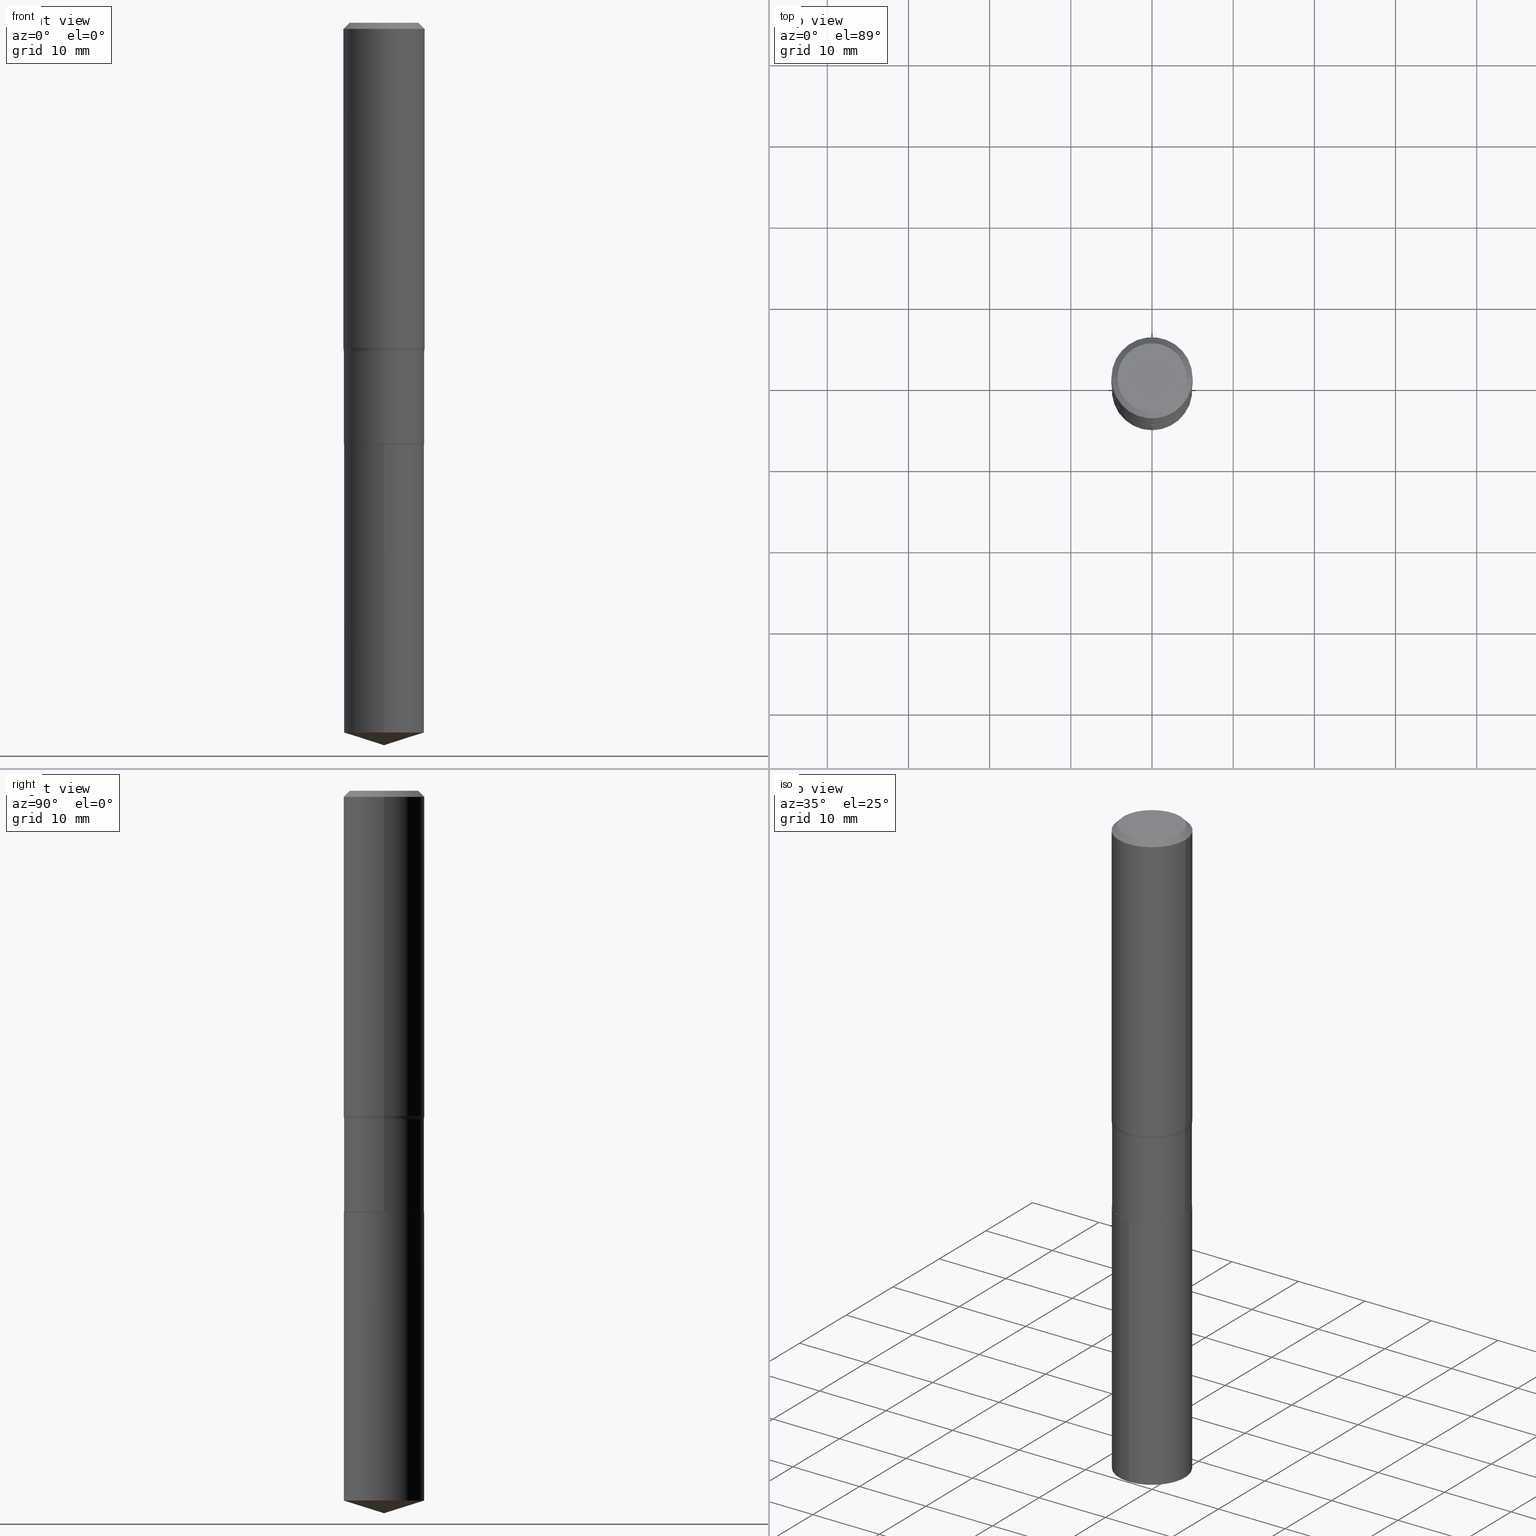
[diagram: canonical four-view strip — front | top / right | iso, engineering-drawing reading convention]
A machine part, canonical four-view strip (front | top / right | iso — engineering-drawing reading convention). The complete STEP part file that produces these views, byte-faithful:
ISO-10303-21;
HEADER;
FILE_DESCRIPTION (( 'STEP AP203' ),
    '1' );
FILE_NAME ('63780.STEP',
    '2024-04-19T15:10:16',
    ( '' ),
    ( '' ),
    'SwSTEP 2.0',
    'SolidWorks 2023',
    '' );
FILE_SCHEMA (( 'CONFIG_CONTROL_DESIGN' ));
ENDSEC;

DATA;
#1 = EDGE_CURVE ( 'NONE', #183, #112, #432, .T. ) ;
#2 = ORIENTED_EDGE ( 'NONE', *, *, #188, .T. ) ;
#3 = DATE_TIME_ROLE ( 'classification_date' ) ;
#4 = ORIENTED_EDGE ( 'NONE', *, *, #141, .T. ) ;
#5 = COORDINATED_UNIVERSAL_TIME_OFFSET ( 5, 0, .BEHIND. ) ;
#6 = DIRECTION ( 'NONE',  ( 7.105427357601001859E-15, 1.000000000000000000, -3.491481338843145583E-15 ) ) ;
#7 = AXIS2_PLACEMENT_3D ( 'NONE', #107, #331, #24 ) ;
#8 = EDGE_CURVE ( 'NONE', #134, #32, #140, .T. ) ;
#9 = CARTESIAN_POINT ( 'NONE',  ( 4.995603677274996933E-29, -7.132398078988777393E-15, -2.042799999999999727 ) ) ;
#10 = CARTESIAN_POINT ( 'NONE',  ( 0.1968500000000001082, -1.374596203102542397E-15, 9.598753983154305062E-30 ) ) ;
#11 = PRODUCT_DEFINITION_SHAPE ( 'NONE', 'NONE',  #350 ) ;
#12 = CARTESIAN_POINT ( 'NONE',  ( 8.418291148036325136E-29, -1.201939955042089014E-14, -3.442448266047486882 ) ) ;
#13 = VECTOR ( 'NONE', #248, 39.37007874015748143 ) ;
#14 = CC_DESIGN_DATE_AND_TIME_ASSIGNMENT ( #76, #3, ( #116 ) ) ;
#15 = PLANE ( 'NONE',  #129 ) ;
#16 = ORIENTED_EDGE ( 'NONE', *, *, #120, .F. ) ;
#17 = ORIENTED_EDGE ( 'NONE', *, *, #450, .T. ) ;
#18 = CARTESIAN_POINT ( 'NONE',  ( 7.220858017463212989E-31, -1.030947152326917102E-16, -0.02952750000000020636 ) ) ;
#19 = PERSON_AND_ORGANIZATION ( #220, #409 ) ;
#20 = EDGE_LOOP ( 'NONE', ( #189, #354, #211, #455 ) ) ;
#21 = CLOSED_SHELL ( 'NONE', ( #319, #361, #27, #268, #306 ) ) ;
#22 = LINE ( 'NONE', #171, #415 ) ;
#23 = LOCAL_TIME ( 11, 10, 16.00000000000000000, #174 ) ;
#24 = DIRECTION ( 'NONE',  ( 1.000000000000000000, -6.982962677686269866E-15, 0.000000000000000000 ) ) ;
#25 = CARTESIAN_POINT ( 'NONE',  ( -1.001697619218021790E-46, 1.430158722866389718E-32, 4.096137381448108366E-18 ) ) ;
#26 = CARTESIAN_POINT ( 'NONE',  ( -0.1968500000000000250, 1.271501487869850120E-15, -0.02952750000000020636 ) ) ;
#27 = ADVANCED_FACE ( 'NONE', ( #365 ), #83, .T. ) ;
#28 = APPROVAL_STATUS ( 'not_yet_approved' ) ;
#29 = EDGE_LOOP ( 'NONE', ( #144, #197, #353 ) ) ;
#30 = CONICAL_SURFACE ( 'NONE', #434, 0.1968500000000000250, 0.7853981633974452814 ) ;
#31 = ADVANCED_FACE ( 'NONE', ( #338 ), #468, .F. ) ;
#32 = VERTEX_POINT ( 'NONE', #303 ) ;
#33 = APPROVAL_STATUS ( 'not_yet_approved' ) ;
#34 = VECTOR ( 'NONE', #414, 39.37007874015748143 ) ;
#35 = CONICAL_SURFACE ( 'NONE', #483, 124.8659371009158576, 1.265363707695893458 ) ;
#36 = ORIENTED_EDGE ( 'NONE', *, *, #66, .F. ) ;
#37 = ORIENTED_EDGE ( 'NONE', *, *, #377, .F. ) ;
#38 = APPROVAL_DATE_TIME ( #109, #357 ) ;
#39 = MANIFOLD_SOLID_BREP ( 'Body-Move/Copy2[2]', #194 ) ;
#40 = DIRECTION ( 'NONE',  ( 2.445468806185136597E-29, -3.491481338843145583E-15, -1.000000000000000000 ) ) ;
#41 = EDGE_CURVE ( 'NONE', #223, #440, #422, .T. ) ;
#42 = VERTEX_POINT ( 'NONE', #420 ) ;
#43 = PRODUCT_RELATED_PRODUCT_CATEGORY ( 'detail', '', ( #202 ) ) ;
#44 = AXIS2_PLACEMENT_3D ( 'NONE', #475, #408, #175 ) ;
#45 = ORIENTED_EDGE ( 'NONE', *, *, #119, .T. ) ;
#46 = FACE_OUTER_BOUND ( 'NONE', #410, .T. ) ;
#47 = LINE ( 'NONE', #389, #292 ) ;
#48 = DIRECTION ( 'NONE',  ( -1.000000000000000000, 6.982962677686265922E-15, 0.000000000000000000 ) ) ;
#49 = DIRECTION ( 'NONE',  ( -2.445468806185136597E-29, 3.491481338843145583E-15, 1.000000000000000000 ) ) ;
#50 = ADVANCED_FACE ( 'NONE', ( #224 ), #384, .T. ) ;
#51 = AXIS2_PLACEMENT_3D ( 'NONE', #222, #383, #160 ) ;
#52 = DIRECTION ( 'NONE',  ( 2.438088387897960049E-29, -3.491481338843145188E-15, -1.000000000000000000 ) ) ;
#53 = CARTESIAN_POINT ( 'NONE',  ( 0.000000000000000000, 0.000000000000000000, 0.000000000000000000 ) ) ;
#54 = CARTESIAN_POINT ( 'NONE',  ( -0.1943999999999999895, -5.752848741340564801E-15, -2.043299999999999894 ) ) ;
#55 = APPROVAL_DATE_TIME ( #479, #256 ) ;
#56 = CARTESIAN_POINT ( 'NONE',  ( -0.1948999999999999344, 1.384847791996434796E-15, -9.587004490906808522E-30 ) ) ;
#57 =( LENGTH_UNIT ( ) NAMED_UNIT ( * ) SI_UNIT ( $, .METRE. ) );
#58 = ORIENTED_EDGE ( 'NONE', *, *, #288, .T. ) ;
#59 = VERTEX_POINT ( 'NONE', #460 ) ;
#60 = APPROVAL_ROLE ( '' ) ;
#61 = ORIENTED_EDGE ( 'NONE', *, *, #445, .T. ) ;
#62 =( NAMED_UNIT ( * ) SI_UNIT ( $, .STERADIAN. ) SOLID_ANGLE_UNIT ( ) );
#63 = ORIENTED_EDGE ( 'NONE', *, *, #1, .T. ) ;
#64 = FACE_OUTER_BOUND ( 'NONE', #20, .T. ) ;
#65 = DIRECTION ( 'NONE',  ( 1.000000000000000000, -6.982962677686264344E-15, 0.000000000000000000 ) ) ;
#66 = EDGE_CURVE ( 'NONE', #112, #81, #77, .T. ) ;
#67 = VECTOR ( 'NONE', #192, 39.37007874015748854 ) ;
#68 = DIRECTION ( 'NONE',  ( -2.445391113569169030E-29, 3.491592599091200218E-15, 1.000000000000000000 ) ) ;
#69 = AXIS2_PLACEMENT_3D ( 'NONE', #372, #105, #376 ) ;
#70 = FACE_OUTER_BOUND ( 'NONE', #286, .T. ) ;
#71 = FACE_OUTER_BOUND ( 'NONE', #177, .T. ) ;
#72 = EDGE_LOOP ( 'NONE', ( #247, #388 ) ) ;
#73 = ORIENTED_EDGE ( 'NONE', *, *, #349, .F. ) ;
#74 = ORIENTED_EDGE ( 'NONE', *, *, #8, .T. ) ;
#75 = EDGE_CURVE ( 'NONE', #183, #42, #91, .T. ) ;
#76 = DATE_AND_TIME ( #492, #84 ) ;
#77 = CIRCLE ( 'NONE', #458, 0.1968500000000000250 ) ;
#78 = CIRCLE ( 'NONE', #250, 0.1948999999999999899 ) ;
#79 = AXIS2_PLACEMENT_3D ( 'NONE', #315, #49, #163 ) ;
#80 = CC_DESIGN_SECURITY_CLASSIFICATION ( #116, ( #169 ) ) ;
#81 = VERTEX_POINT ( 'NONE', #316 ) ;
#82 = FACE_OUTER_BOUND ( 'NONE', #106, .T. ) ;
#83 = CONICAL_SURFACE ( 'NONE', #178, 124.8659371009158576, 1.265363707695893458 ) ;
#84 = LOCAL_TIME ( 11, 10, 16.00000000000000000, #5 ) ;
#85 = DIRECTION ( 'NONE',  ( -2.445468806185136877E-29, 3.491481338843145188E-15, 1.000000000000000000 ) ) ;
#86 = CARTESIAN_POINT ( 'NONE',  ( 8.568405922835011019E-29, -1.223419130795565579E-14, -3.503899999999999793 ) ) ;
#87 = CARTESIAN_POINT ( 'NONE',  ( 4.996826411678089735E-29, -7.134143819658199685E-15, -2.043299999999999894 ) ) ;
#88 = DIRECTION ( 'NONE',  ( -2.445391113569169030E-29, 3.491592599091200218E-15, 1.000000000000000000 ) ) ;
#89 = DIRECTION ( 'NONE',  ( 1.000000000000000000, -6.982962677686268288E-15, 0.000000000000000000 ) ) ;
#90 = CARTESIAN_POINT ( 'NONE',  ( 2.991744469266002380E-29, -1.000553528336920337E-14, -2.043299999999999894 ) ) ;
#91 = CIRCLE ( 'NONE', #278, 0.1673224999999999851 ) ;
#92 = AXIS2_PLACEMENT_3D ( 'NONE', #266, #6, #231 ) ;
#93 = CARTESIAN_POINT ( 'NONE',  ( -0.1948999999999999899, -4.965807615225361547E-15, -2.042799999999999727 ) ) ;
#94 = EDGE_CURVE ( 'NONE', #474, #267, #332, .T. ) ;
#95 = ORIENTED_EDGE ( 'NONE', *, *, #141, .F. ) ;
#96 = DIRECTION ( 'NONE',  ( -1.000000000000000000, 6.982962677686265922E-15, -4.876176775795935793E-29 ) ) ;
#97 = ORIENTED_EDGE ( 'NONE', *, *, #41, .F. ) ;
#98 = VERTEX_POINT ( 'NONE', #234 ) ;
#99 = MECHANICAL_CONTEXT ( 'NONE', #454, 'mechanical' ) ;
#100 = VECTOR ( 'NONE', #210, 39.37007874015748143 ) ;
#101 = AXIS2_PLACEMENT_3D ( 'NONE', #9, #103, #486 ) ;
#102 = DIRECTION ( 'NONE',  ( 1.000000000000000000, -6.982962677686267499E-15, 0.000000000000000000 ) ) ;
#103 = DIRECTION ( 'NONE',  ( -2.445468806185136597E-29, 3.491481338843145583E-15, 1.000000000000000000 ) ) ;
#104 = DIRECTION ( 'NONE',  ( -2.445468806185136877E-29, 3.491481338843145188E-15, 1.000000000000000000 ) ) ;
#105 = DIRECTION ( 'NONE',  ( 2.445391113569168750E-29, -3.491592599091200218E-15, -1.000000000000000000 ) ) ;
#106 = EDGE_LOOP ( 'NONE', ( #373, #239, #63, #423 ) ) ;
#107 = CARTESIAN_POINT ( 'NONE',  ( 3.858137931593122664E-29, -5.508398453813880195E-15, -1.577668020886232814 ) ) ;
#108 = CIRCLE ( 'NONE', #225, 0.07800000000000002764 ) ;
#109 = DATE_AND_TIME ( #418, #465 ) ;
#110 = AXIS2_PLACEMENT_3D ( 'NONE', #264, #40, #48 ) ;
#111 = ADVANCED_FACE ( 'NONE', ( #166 ), #277, .T. ) ;
#112 = VERTEX_POINT ( 'NONE', #437 ) ;
#113 = CARTESIAN_POINT ( 'NONE',  ( -1.360979425881003196E-15, -0.1949000000000071231, -2.043299999999999006 ) ) ;
#114 = CONICAL_SURFACE ( 'NONE', #44, 0.1943999999999999895, 0.7853981633972775267 ) ;
#115 = DIRECTION ( 'NONE',  ( -6.982962677686266711E-15, -1.000000000000000000, 3.491481338843145583E-15 ) ) ;
#116 = SECURITY_CLASSIFICATION ( '', '', #259 ) ;
#117 = LINE ( 'NONE', #113, #258 ) ;
#118 = CYLINDRICAL_SURFACE ( 'NONE', #318, 0.1948999999999999899 ) ;
#119 = EDGE_CURVE ( 'NONE', #193, #406, #379, .T. ) ;
#120 = EDGE_CURVE ( 'NONE', #474, #134, #204, .T. ) ;
#121 = DIRECTION ( 'NONE',  ( -2.445468806185136597E-29, 3.491481338843145583E-15, 1.000000000000000000 ) ) ;
#122 = DIRECTION ( 'NONE',  ( -2.445468806185136597E-29, 3.491481338843145583E-15, 1.000000000000000000 ) ) ;
#123 = CARTESIAN_POINT ( 'NONE',  ( -1.360979425881003196E-15, -0.1949000000000071231, -2.043299999999999006 ) ) ;
#124 = AXIS2_PLACEMENT_3D ( 'NONE', #25, #330, #476 ) ;
#125 = CARTESIAN_POINT ( 'NONE',  ( 8.568726205567757798E-29, -1.223373663182595552E-14, -3.503899999999999793 ) ) ;
#126 = ORIENTED_EDGE ( 'NONE', *, *, #217, .F. ) ;
#127 = CARTESIAN_POINT ( 'NONE',  ( 3.858137931593122664E-29, -5.508398453813880195E-15, -1.577668020886232814 ) ) ;
#128 = APPROVAL ( #190, 'UNSPECIFIED' ) ;
#129 = AXIS2_PLACEMENT_3D ( 'NONE', #90, #466, #362 ) ;
#130 = ORIENTED_EDGE ( 'NONE', *, *, #347, .F. ) ;
#131 = AXIS2_PLACEMENT_3D ( 'NONE', #12, #237, #198 ) ;
#132 = CARTESIAN_POINT ( 'NONE',  ( 0.1948999999999999344, -1.360979425881052894E-15, 9.503668536026277414E-30 ) ) ;
#133 = DATE_TIME_ROLE ( 'creation_date' ) ;
#134 = VERTEX_POINT ( 'NONE', #93 ) ;
#135 = PERSON_AND_ORGANIZATION ( #220, #409 ) ;
#136 = DIRECTION ( 'NONE',  ( 1.000000000000000000, -6.982962677686266711E-15, 4.876176775795936914E-29 ) ) ;
#137 = DIRECTION ( 'NONE',  ( 1.000000000000000000, -6.982962677686267499E-15, 0.000000000000000000 ) ) ;
#138 = EDGE_LOOP ( 'NONE', ( #16, #391, #314, #342 ) ) ;
#139 = DIRECTION ( 'NONE',  ( -6.982962677686265922E-15, -1.000000000000000000, 3.500519750498682344E-15 ) ) ;
#140 = CIRCLE ( 'NONE', #164, 0.1948999999999999899 ) ;
#141 = EDGE_CURVE ( 'NONE', #81, #112, #425, .T. ) ;
#142 = ORIENTED_EDGE ( 'NONE', *, *, #180, .F. ) ;
#143 = DIRECTION ( 'NONE',  ( -2.445468806185136597E-29, 3.491481338843145583E-15, 1.000000000000000000 ) ) ;
#144 = ORIENTED_EDGE ( 'NONE', *, *, #206, .F. ) ;
#145 = PERSON_AND_ORGANIZATION_ROLE ( 'creator' ) ;
#146 = CC_DESIGN_PERSON_AND_ORGANIZATION_ASSIGNMENT ( #135, #446, ( #202 ) ) ;
#147 = ORIENTED_EDGE ( 'NONE', *, *, #300, .F. ) ;
#148 = DIRECTION ( 'NONE',  ( 1.000000000000000000, -6.982962677686265922E-15, 4.883557194083111780E-29 ) ) ;
#149 = PERSON_AND_ORGANIZATION ( #220, #409 ) ;
#150 = LOCAL_TIME ( 11, 10, 16.00000000000000000, #155 ) ;
#151 = ADVANCED_FACE ( 'NONE', ( #403 ), #15, .F. ) ;
#152 = ORIENTED_EDGE ( 'NONE', *, *, #478, .T. ) ;
#153 = PERSON_AND_ORGANIZATION ( #220, #409 ) ;
#154 = CARTESIAN_POINT ( 'NONE',  ( 7.220858017463212989E-31, -1.030947152326917102E-16, -0.02952750000000020636 ) ) ;
#155 = COORDINATED_UNIVERSAL_TIME_OFFSET ( 5, 0, .BEHIND. ) ;
#156 = EDGE_CURVE ( 'NONE', #134, #98, #240, .T. ) ;
#157 = CARTESIAN_POINT ( 'NONE',  ( 0.1968500000000002470, -6.882994656916424959E-15, -1.577668020886232814 ) ) ;
#158 = AXIS2_PLACEMENT_3D ( 'NONE', #336, #284, #371 ) ;
#159 = CARTESIAN_POINT ( 'NONE',  ( 0.1943999999999999895, -8.491631764200409770E-15, -2.043299999999999894 ) ) ;
#160 = DIRECTION ( 'NONE',  ( 1.000000000000000000, -6.982962677686266711E-15, 4.876176775795935793E-29 ) ) ;
#161 = DIRECTION ( 'NONE',  ( 1.000000000000000000, -6.982962677686267499E-15, 4.876294436782262290E-29 ) ) ;
#162 = ADVANCED_FACE ( 'NONE', ( #396 ), #207, .F. ) ;
#163 = DIRECTION ( 'NONE',  ( 1.000000000000000000, -6.982962677686267499E-15, 0.000000000000000000 ) ) ;
#164 = AXIS2_PLACEMENT_3D ( 'NONE', #335, #290, #65 ) ;
#165 = CIRCLE ( 'NONE', #79, 0.1948999999999999067 ) ;
#166 = FACE_OUTER_BOUND ( 'NONE', #281, .T. ) ;
#167 = DIRECTION ( 'NONE',  ( 0.7071067811865453523, -7.319954787623248157E-15, -0.7071067811865496822 ) ) ;
#168 = EDGE_CURVE ( 'NONE', #42, #81, #22, .T. ) ;
#169 = PRODUCT_DEFINITION_FORMATION_WITH_SPECIFIED_SOURCE ( 'ANY', '', #202, .NOT_KNOWN. ) ;
#170 = ORIENTED_EDGE ( 'NONE', *, *, #156, .F. ) ;
#171 = CARTESIAN_POINT ( 'NONE',  ( 0.1968500000000000250, -1.453583746094017706E-15, -0.02952750000000020636 ) ) ;
#172 = APPLICATION_PROTOCOL_DEFINITION ( 'international standard', 'config_control_design', 1994, #454 ) ;
#173 = DIRECTION ( 'NONE',  ( -2.445391113569169030E-29, 3.491592599091200218E-15, 1.000000000000000000 ) ) ;
#174 = COORDINATED_UNIVERSAL_TIME_OFFSET ( 5, 0, .BEHIND. ) ;
#175 = DIRECTION ( 'NONE',  ( 1.000000000000000000, -6.982962677686267499E-15, 0.000000000000000000 ) ) ;
#176 = CARTESIAN_POINT ( 'NONE',  ( 4.996826411678089735E-29, -7.134143819658199685E-15, -2.043299999999999894 ) ) ;
#177 = EDGE_LOOP ( 'NONE', ( #327, #273, #265, #308 ) ) ;
#178 = AXIS2_PLACEMENT_3D ( 'NONE', #480, #254, #139 ) ;
#179 = CIRCLE ( 'NONE', #233, 0.1948999999999999899 ) ;
#180 = EDGE_CURVE ( 'NONE', #32, #461, #469, .T. ) ;
#181 = ADVANCED_FACE ( 'NONE', ( #64 ), #114, .T. ) ;
#182 = PERSON_AND_ORGANIZATION_ROLE ( 'classification_officer' ) ;
#183 = VERTEX_POINT ( 'NONE', #394 ) ;
#184 = CC_DESIGN_APPROVAL ( #128, ( #116 ) ) ;
#185 = CARTESIAN_POINT ( 'NONE',  ( 8.568405922835012140E-29, -1.223419130795565422E-14, -3.503899999999999793 ) ) ;
#186 = DIMENSIONAL_EXPONENTS ( 1.000000000000000000, 0.000000000000000000, 0.000000000000000000, 0.000000000000000000, 0.000000000000000000, 0.000000000000000000, 0.000000000000000000 ) ;
#187 = PERSON_AND_ORGANIZATION ( #220, #409 ) ;
#188 = EDGE_CURVE ( 'NONE', #59, #473, #47, .T. ) ;
#189 = ORIENTED_EDGE ( 'NONE', *, *, #487, .T. ) ;
#190 = APPROVAL_STATUS ( 'not_yet_approved' ) ;
#191 = CARTESIAN_POINT ( 'NONE',  ( 4.996826411678088614E-29, -7.134143819658198107E-15, -2.043299999999999894 ) ) ;
#192 = DIRECTION ( 'NONE',  ( -6.659769872151635244E-15, -0.9537169507482271547, 0.3007057995042720644 ) ) ;
#193 = VERTEX_POINT ( 'NONE', #157 ) ;
#194 = CLOSED_SHELL ( 'NONE', ( #181, #228, #235, #31, #111, #320, #444, #50, #255, #162, #151, #449 ) ) ;
#195 = CARTESIAN_POINT ( 'NONE',  ( 0.000000000000000000, 0.000000000000000000, 0.000000000000000000 ) ) ;
#196 = CARTESIAN_POINT ( 'NONE',  ( 7.220858017463212989E-31, -1.030947152326917102E-16, -0.02952750000000020636 ) ) ;
#197 = ORIENTED_EDGE ( 'NONE', *, *, #41, .T. ) ;
#198 = DIRECTION ( 'NONE',  ( -6.982962677686266711E-15, -1.000000000000000000, 2.803332984776052637E-15 ) ) ;
#199 = CARTESIAN_POINT ( 'NONE',  ( 8.418291148036325136E-29, -1.201939955042089014E-14, -3.442448266047486882 ) ) ;
#200 = LINE ( 'NONE', #125, #325 ) ;
#201 = AXIS2_PLACEMENT_3D ( 'NONE', #321, #245, #283 ) ;
#202 = PRODUCT ( '63780', '63780', '', ( #99 ) ) ;
#203 = CIRCLE ( 'NONE', #124, 0.1673224999999999851 ) ;
#204 = LINE ( 'NONE', #54, #317 ) ;
#205 = LINE ( 'NONE', #360, #426 ) ;
#206 = EDGE_CURVE ( 'NONE', #223, #59, #200, .T. ) ;
#207 = PLANE ( 'NONE',  #481 ) ;
#208 = DIRECTION ( 'NONE',  ( -2.445468806185136597E-29, 3.491481338843145583E-15, 1.000000000000000000 ) ) ;
#209 = ORIENTED_EDGE ( 'NONE', *, *, #274, .T. ) ;
#210 = DIRECTION ( 'NONE',  ( -2.445468806185136877E-29, 3.491481338843145188E-15, 1.000000000000000000 ) ) ;
#211 = ORIENTED_EDGE ( 'NONE', *, *, #288, .F. ) ;
#212 = AXIS2_PLACEMENT_3D ( 'NONE', #53, #369, #136 ) ;
#213 = CARTESIAN_POINT ( 'NONE',  ( 0.000000000000000000, 0.000000000000000000, 0.000000000000000000 ) ) ;
#214 = CC_DESIGN_PERSON_AND_ORGANIZATION_ASSIGNMENT ( #489, #145, ( #169 ) ) ;
#215 = DIRECTION ( 'NONE',  ( -2.445468806185136597E-29, 3.491481338843145583E-15, 1.000000000000000000 ) ) ;
#216 = VERTEX_POINT ( 'NONE', #123 ) ;
#217 = EDGE_CURVE ( 'NONE', #193, #461, #108, .T. ) ;
#218 = AXIS2_PLACEMENT_3D ( 'NONE', #18, #243, #441 ) ;
#219 = AXIS2_PLACEMENT_3D ( 'NONE', #176, #143, #137 ) ;
#220 = PERSON ( 'UNSPECIFIED', 'UNSPECIFIED', 'UNSPECIFIED', ('UNSPECIFIED'), ('UNSPECIFIED'), ('UNSPECIFIED') ) ;
#221 = DIRECTION ( 'NONE',  ( -6.982962677686266711E-15, -1.000000000000000000, 2.803332984776052637E-15 ) ) ;
#222 = CARTESIAN_POINT ( 'NONE',  ( 0.000000000000000000, 0.000000000000000000, 0.000000000000000000 ) ) ;
#223 = VERTEX_POINT ( 'NONE', #86 ) ;
#224 = FACE_OUTER_BOUND ( 'NONE', #269, .T. ) ;
#225 = AXIS2_PLACEMENT_3D ( 'NONE', #271, #115, #89 ) ;
#226 = APPROVAL_DATE_TIME ( #451, #128 ) ;
#227 = APPROVAL_PERSON_ORGANIZATION ( #153, #357, #424 ) ;
#228 = ADVANCED_FACE ( 'NONE', ( #238 ), #30, .T. ) ;
#229 = FACE_OUTER_BOUND ( 'NONE', #334, .T. ) ;
#230 = ORIENTED_EDGE ( 'NONE', *, *, #439, .F. ) ;
#231 = DIRECTION ( 'NONE',  ( -1.000000000000000000, 7.105427357601001859E-15, 0.000000000000000000 ) ) ;
#232 = ORIENTED_EDGE ( 'NONE', *, *, #180, .T. ) ;
#233 = AXIS2_PLACEMENT_3D ( 'NONE', #337, #68, #221 ) ;
#234 = CARTESIAN_POINT ( 'NONE',  ( -0.1948999999999999067, -4.965807615225362336E-15, -1.594999999999999751 ) ) ;
#235 = ADVANCED_FACE ( 'NONE', ( #309 ), #390, .T. ) ;
#236 = ORIENTED_EDGE ( 'NONE', *, *, #75, .T. ) ;
#237 = DIRECTION ( 'NONE',  ( -2.445391113569169030E-29, 3.491592599091200218E-15, 1.000000000000000000 ) ) ;
#238 = FACE_OUTER_BOUND ( 'NONE', #348, .T. ) ;
#239 = ORIENTED_EDGE ( 'NONE', *, *, #75, .F. ) ;
#240 = LINE ( 'NONE', #56, #100 ) ;
#241 = CIRCLE ( 'NONE', #416, 0.1943999999999999895 ) ;
#242 = ORIENTED_EDGE ( 'NONE', *, *, #188, .F. ) ;
#243 = DIRECTION ( 'NONE',  ( -2.445468806185136597E-29, 3.491481338843145583E-15, 1.000000000000000000 ) ) ;
#244 = ORIENTED_EDGE ( 'NONE', *, *, #401, .T. ) ;
#245 = DIRECTION ( 'NONE',  ( -2.445468806185136597E-29, 3.491481338843145583E-15, 1.000000000000000000 ) ) ;
#246 = CARTESIAN_POINT ( 'NONE',  ( 1.384847791996519402E-15, 0.1948999999999928567, -2.043300000000000338 ) ) ;
#247 = ORIENTED_EDGE ( 'NONE', *, *, #487, .F. ) ;
#248 = DIRECTION ( 'NONE',  ( -2.445468806185136877E-29, 3.491481338843145188E-15, 1.000000000000000000 ) ) ;
#249 = EDGE_LOOP ( 'NONE', ( #170, #74, #232, #282 ) ) ;
#250 = AXIS2_PLACEMENT_3D ( 'NONE', #199, #356, #351 ) ;
#251 = PERSON_AND_ORGANIZATION ( #220, #409 ) ;
#252 = LENGTH_MEASURE_WITH_UNIT ( LENGTH_MEASURE( 0.02539999999999999897 ), #57 );
#253 = ORIENTED_EDGE ( 'NONE', *, *, #450, .F. ) ;
#254 = DIRECTION ( 'NONE',  ( -2.445391113569169030E-29, 3.491592599091200218E-15, 1.000000000000000000 ) ) ;
#255 = ADVANCED_FACE ( 'NONE', ( #82 ), #397, .T. ) ;
#256 = APPROVAL ( #28, 'UNSPECIFIED' ) ;
#257 = AXIS2_PLACEMENT_3D ( 'NONE', #87, #121, #431 ) ;
#258 = VECTOR ( 'NONE', #430, 39.37007874015748143 ) ;
#259 = SECURITY_CLASSIFICATION_LEVEL ( 'unclassified' ) ;
#260 = VECTOR ( 'NONE', #104, 39.37007874015748143 ) ;
#261 = ORIENTED_EDGE ( 'NONE', *, *, #168, .T. ) ;
#262 = AXIS2_PLACEMENT_3D ( 'NONE', #404, #208, #378 ) ;
#263 = PERSON_AND_ORGANIZATION_ROLE ( 'design_supplier' ) ;
#264 = CARTESIAN_POINT ( 'NONE',  ( 7.220858017463212989E-31, -1.030947152326917102E-16, -0.02952750000000020636 ) ) ;
#265 = ORIENTED_EDGE ( 'NONE', *, *, #217, .T. ) ;
#266 = CARTESIAN_POINT ( 'NONE',  ( -0.2728999999999999204, -3.629841609565504424E-15, -1.594999999999999751 ) ) ;
#267 = VERTEX_POINT ( 'NONE', #159 ) ;
#268 = ADVANCED_FACE ( 'NONE', ( #46 ), #118, .T. ) ;
#269 = EDGE_LOOP ( 'NONE', ( #130, #152, #427, #36 ) ) ;
#270 = AXIS2_PLACEMENT_3D ( 'NONE', #127, #399, #359 ) ;
#271 = CARTESIAN_POINT ( 'NONE',  ( 0.2728999999999999204, -7.474563250195398403E-15, -1.594999999999999751 ) ) ;
#272 = AXIS2_PLACEMENT_3D ( 'NONE', #213, #442, #329 ) ;
#273 = ORIENTED_EDGE ( 'NONE', *, *, #119, .F. ) ;
#274 = EDGE_CURVE ( 'NONE', #440, #59, #78, .T. ) ;
#275 = EDGE_CURVE ( 'NONE', #406, #98, #294, .T. ) ;
#276 = ORIENTED_EDGE ( 'NONE', *, *, #341, .F. ) ;
#277 = CYLINDRICAL_SURFACE ( 'NONE', #201, 0.1948999999999999344 ) ;
#278 = AXIS2_PLACEMENT_3D ( 'NONE', #352, #122, #161 ) ;
#279 = CIRCLE ( 'NONE', #158, 0.1948999999999999899 ) ;
#280 = ORIENTED_EDGE ( 'NONE', *, *, #341, .T. ) ;
#281 = EDGE_LOOP ( 'NONE', ( #58, #345, #230, #142 ) ) ;
#282 = ORIENTED_EDGE ( 'NONE', *, *, #445, .F. ) ;
#283 = DIRECTION ( 'NONE',  ( 1.000000000000000000, -6.982962677686266711E-15, 4.876176775795936914E-29 ) ) ;
#284 = DIRECTION ( 'NONE',  ( -2.445391113569169030E-29, 3.491592599091200218E-15, 1.000000000000000000 ) ) ;
#285 = DIRECTION ( 'NONE',  ( 0.7071067811864267805, -2.468850131080992517E-15, 0.7071067811866682540 ) ) ;
#286 = EDGE_LOOP ( 'NONE', ( #209, #2, #253, #37 ) ) ;
#287 = CARTESIAN_POINT ( 'NONE',  ( -0.1943999999999999895, -5.750199514166452812E-15, -2.043299999999999894 ) ) ;
#288 = EDGE_CURVE ( 'NONE', #32, #134, #470, .T. ) ;
#289 = LINE ( 'NONE', #443, #13 ) ;
#290 = DIRECTION ( 'NONE',  ( -2.445468806185136597E-29, 3.491481338843145583E-15, 1.000000000000000000 ) ) ;
#291 = PERSON_AND_ORGANIZATION_ROLE ( 'creator' ) ;
#292 = VECTOR ( 'NONE', #88, 39.37007874015748143 ) ;
#293 = AXIS2_PLACEMENT_3D ( 'NONE', #195, #395, #457 ) ;
#294 = CIRCLE ( 'NONE', #92, 0.07800000000000002764 ) ;
#295 = DIRECTION ( 'NONE',  ( 1.000000000000000000, -6.982962677686265922E-15, 4.883557194083111780E-29 ) ) ;
#296 = CYLINDRICAL_SURFACE ( 'NONE', #358, 0.1948999999999999899 ) ;
#297 = ORIENTED_EDGE ( 'NONE', *, *, #206, .T. ) ;
#298 = DESIGN_CONTEXT ( 'detailed design', #364, 'design' ) ;
#299 = CARTESIAN_POINT ( 'NONE',  ( 0.1948999999999999067, -6.929892161335869568E-15, -1.594999999999999751 ) ) ;
#300 = EDGE_CURVE ( 'NONE', #473, #216, #179, .T. ) ;
#301 = CC_DESIGN_PERSON_AND_ORGANIZATION_ASSIGNMENT ( #187, #182, ( #116 ) ) ;
#302 = APPROVAL_ROLE ( '' ) ;
#303 = CARTESIAN_POINT ( 'NONE',  ( 0.1948999999999999899, -8.493377504869830484E-15, -2.042799999999999727 ) ) ;
#304 = VECTOR ( 'NONE', #85, 39.37007874015748143 ) ;
#305 = PERSON_AND_ORGANIZATION ( #220, #409 ) ;
#306 = ADVANCED_FACE ( 'NONE', ( #488 ), #412, .F. ) ;
#307 = EDGE_LOOP ( 'NONE', ( #419, #428, #61, #126 ) ) ;
#308 = ORIENTED_EDGE ( 'NONE', *, *, #439, .T. ) ;
#309 = FACE_OUTER_BOUND ( 'NONE', #421, .T. ) ;
#310 = CC_DESIGN_APPROVAL ( #256, ( #350 ) ) ;
#311 = DIRECTION ( 'NONE',  ( -2.445391113569169030E-29, 3.491592599091200218E-15, 1.000000000000000000 ) ) ;
#312 = DIRECTION ( 'NONE',  ( 2.445468806185136597E-29, -3.491481338843145583E-15, -1.000000000000000000 ) ) ;
#313 = DIRECTION ( 'NONE',  ( -6.982962677686265922E-15, -1.000000000000000000, 3.500519750498682344E-15 ) ) ;
#314 = ORIENTED_EDGE ( 'NONE', *, *, #328, .T. ) ;
#315 = CARTESIAN_POINT ( 'NONE',  ( 3.900522745865292334E-29, -5.568912735454817265E-15, -1.594999999999999751 ) ) ;
#316 = CARTESIAN_POINT ( 'NONE',  ( 0.1968500000000000250, -1.477690918335233294E-15, -0.02952750000000020636 ) ) ;
#317 = VECTOR ( 'NONE', #323, 39.37007874015748143 ) ;
#318 = AXIS2_PLACEMENT_3D ( 'NONE', #191, #346, #462 ) ;
#319 = ADVANCED_FACE ( 'NONE', ( #70 ), #296, .T. ) ;
#320 = ADVANCED_FACE ( 'NONE', ( #398 ), #472, .T. ) ;
#321 = CARTESIAN_POINT ( 'NONE',  ( 0.000000000000000000, 0.000000000000000000, 0.000000000000000000 ) ) ;
#322 = ORIENTED_EDGE ( 'NONE', *, *, #274, .F. ) ;
#323 = DIRECTION ( 'NONE',  ( -0.7071067811864267805, 7.493145998869918709E-15, 0.7071067811866682540 ) ) ;
#324 = CALENDAR_DATE ( 2024, 19, 4 ) ;
#325 = VECTOR ( 'NONE', #464, 39.37007874015748854 ) ;
#326 = DIRECTION ( 'NONE',  ( -6.982962677686266711E-15, -1.000000000000000000, 2.803332984776052637E-15 ) ) ;
#327 = ORIENTED_EDGE ( 'NONE', *, *, #275, .F. ) ;
#328 = EDGE_CURVE ( 'NONE', #267, #32, #205, .T. ) ;
#329 = DIRECTION ( 'NONE',  ( 1.000000000000000000, 0.000000000000000000, 0.000000000000000000 ) ) ;
#330 = DIRECTION ( 'NONE',  ( -2.445468806185136597E-29, 3.491481338843145583E-15, 1.000000000000000000 ) ) ;
#331 = DIRECTION ( 'NONE',  ( -2.445468806185136597E-29, 3.491481338843145583E-15, 1.000000000000000000 ) ) ;
#332 = CIRCLE ( 'NONE', #257, 0.1943999999999999895 ) ;
#333 =( GEOMETRIC_REPRESENTATION_CONTEXT ( 3 ) GLOBAL_UNCERTAINTY_ASSIGNED_CONTEXT ( ( #370 ) ) GLOBAL_UNIT_ASSIGNED_CONTEXT ( ( #411, #413, #62 ) ) REPRESENTATION_CONTEXT ( 'NONE', 'WORKASPACE' ) );
#334 = EDGE_LOOP ( 'NONE', ( #97, #297, #322 ) ) ;
#335 = CARTESIAN_POINT ( 'NONE',  ( 4.995603677274996933E-29, -7.132398078988777393E-15, -2.042799999999999727 ) ) ;
#336 = CARTESIAN_POINT ( 'NONE',  ( 4.996826411678088614E-29, -7.134143819658198107E-15, -2.043299999999999894 ) ) ;
#337 = CARTESIAN_POINT ( 'NONE',  ( 4.996826411678088614E-29, -7.134143819658198107E-15, -2.043299999999999894 ) ) ;
#338 = FACE_OUTER_BOUND ( 'NONE', #307, .T. ) ;
#339 = EDGE_LOOP ( 'NONE', ( #236, #280 ) ) ;
#340 = CARTESIAN_POINT ( 'NONE',  ( -1.360979425880969472E-15, -0.1949000000000120636, -3.442448266047486438 ) ) ;
#341 = EDGE_CURVE ( 'NONE', #42, #183, #203, .T. ) ;
#342 = ORIENTED_EDGE ( 'NONE', *, *, #8, .F. ) ;
#343 = COORDINATED_UNIVERSAL_TIME_OFFSET ( 5, 0, .BEHIND. ) ;
#344 = CARTESIAN_POINT ( 'NONE',  ( -8.770667601954234965E-28, 1.252303115848808504E-13, 35.86617874015747987 ) ) ;
#345 = ORIENTED_EDGE ( 'NONE', *, *, #156, .T. ) ;
#346 = DIRECTION ( 'NONE',  ( -2.445391113569169030E-29, 3.491592599091200218E-15, 1.000000000000000000 ) ) ;
#347 = EDGE_CURVE ( 'NONE', #406, #112, #289, .T. ) ;
#348 = EDGE_LOOP ( 'NONE', ( #276, #261, #4, #402 ) ) ;
#349 = EDGE_CURVE ( 'NONE', #193, #81, #433, .T. ) ;
#350 = PRODUCT_DEFINITION ( 'UNKNOWN', '', #169, #298 ) ;
#351 = DIRECTION ( 'NONE',  ( -6.982962677686266711E-15, -1.000000000000000000, 2.803332984776052637E-15 ) ) ;
#352 = CARTESIAN_POINT ( 'NONE',  ( -1.001697619218021790E-46, 1.430158722866389718E-32, 4.096137381448108366E-18 ) ) ;
#353 = ORIENTED_EDGE ( 'NONE', *, *, #401, .F. ) ;
#354 = ORIENTED_EDGE ( 'NONE', *, *, #120, .T. ) ;
#355 = CARTESIAN_POINT ( 'NONE',  ( -0.1968500000000002470, -4.109695078470121619E-15, -1.577668020886232814 ) ) ;
#356 = DIRECTION ( 'NONE',  ( -2.445391113569169030E-29, 3.491592599091200218E-15, 1.000000000000000000 ) ) ;
#357 = APPROVAL ( #33, 'UNSPECIFIED' ) ;
#358 = AXIS2_PLACEMENT_3D ( 'NONE', #405, #173, #326 ) ;
#359 = DIRECTION ( 'NONE',  ( 1.000000000000000000, -6.982962677686269866E-15, 0.000000000000000000 ) ) ;
#360 = CARTESIAN_POINT ( 'NONE',  ( 0.1943999999999999895, -8.491631764200409770E-15, -2.043299999999999894 ) ) ;
#361 = ADVANCED_FACE ( 'NONE', ( #229 ), #35, .T. ) ;
#362 = DIRECTION ( 'NONE',  ( 1.000000000000000000, -6.982962677686265922E-15, 4.876176775795935793E-29 ) ) ;
#363 = CC_DESIGN_PERSON_AND_ORGANIZATION_ASSIGNMENT ( #149, #263, ( #169 ) ) ;
#364 = APPLICATION_CONTEXT ( 'configuration controlled 3d designs of mechanical parts and assemblies' ) ;
#365 = FACE_OUTER_BOUND ( 'NONE', #29, .T. ) ;
#366 = CARTESIAN_POINT ( 'NONE',  ( -5.008488096090108951E-47, 7.150793614331948590E-33, 2.048068690724054183E-18 ) ) ;
#367 = AXIS2_PLACEMENT_3D ( 'NONE', #387, #382, #148 ) ;
#368 = APPROVAL_PERSON_ORGANIZATION ( #305, #128, #302 ) ;
#369 = DIRECTION ( 'NONE',  ( -2.445468806185136597E-29, 3.491481338843145583E-15, 1.000000000000000000 ) ) ;
#370 = UNCERTAINTY_MEASURE_WITH_UNIT (LENGTH_MEASURE( 1.000000000000000082E-05 ), #411, 'distance_accuracy_value', 'NONE');
#371 = DIRECTION ( 'NONE',  ( -6.982962677686266711E-15, -1.000000000000000000, 2.803332984776052637E-15 ) ) ;
#372 = CARTESIAN_POINT ( 'NONE',  ( 4.996826411678088614E-29, -7.134143819658198107E-15, -2.043299999999999894 ) ) ;
#373 = ORIENTED_EDGE ( 'NONE', *, *, #168, .F. ) ;
#374 = COORDINATED_UNIVERSAL_TIME_OFFSET ( 5, 0, .BEHIND. ) ;
#375 = MANIFOLD_SOLID_BREP ( 'Body-Move/Copy2[1]', #21 ) ;
#376 = DIRECTION ( 'NONE',  ( 6.982962677686265922E-15, 1.000000000000000000, -3.491592599091200218E-15 ) ) ;
#377 = EDGE_CURVE ( 'NONE', #440, #216, #117, .T. ) ;
#378 = DIRECTION ( 'NONE',  ( 1.000000000000000000, -6.982962677686267499E-15, 0.000000000000000000 ) ) ;
#379 = CIRCLE ( 'NONE', #270, 0.1968500000000002470 ) ;
#380 = AXIS2_PLACEMENT_3D ( 'NONE', #485, #215, #295 ) ;
#381 = CALENDAR_DATE ( 2024, 19, 4 ) ;
#382 = DIRECTION ( 'NONE',  ( -2.445468806185136597E-29, 3.491481338843145583E-15, 1.000000000000000000 ) ) ;
#383 = DIRECTION ( 'NONE',  ( -2.445468806185136597E-29, 3.491481338843145583E-15, 1.000000000000000000 ) ) ;
#384 = CYLINDRICAL_SURFACE ( 'NONE', #51, 0.1968500000000001082 ) ;
#385 = CONICAL_SURFACE ( 'NONE', #219, 0.1943999999999999895, 0.7853981633972775267 ) ;
#386 = SHAPE_DEFINITION_REPRESENTATION ( #11, #429 ) ;
#387 = CARTESIAN_POINT ( 'NONE',  ( 3.900522745865292334E-29, -5.568912735454817265E-15, -1.594999999999999751 ) ) ;
#388 = ORIENTED_EDGE ( 'NONE', *, *, #94, .F. ) ;
#389 = CARTESIAN_POINT ( 'NONE',  ( 1.384847791996484889E-15, 0.1948999999999928567, -2.043300000000000338 ) ) ;
#390 = CYLINDRICAL_SURFACE ( 'NONE', #293, 0.1968500000000001082 ) ;
#391 = ORIENTED_EDGE ( 'NONE', *, *, #94, .T. ) ;
#392 = APPROVAL_PERSON_ORGANIZATION ( #251, #256, #60 ) ;
#393 = DIRECTION ( 'NONE',  ( -1.000000000000000000, 6.982962677686265922E-15, 0.000000000000000000 ) ) ;
#394 = CARTESIAN_POINT ( 'NONE',  ( -0.1673224999999999851, 1.219954130253505263E-15, 4.096137381439757534E-18 ) ) ;
#395 = DIRECTION ( 'NONE',  ( -2.445468806185136597E-29, 3.491481338843145583E-15, 1.000000000000000000 ) ) ;
#396 = FACE_OUTER_BOUND ( 'NONE', #339, .T. ) ;
#397 = CONICAL_SURFACE ( 'NONE', #110, 0.1968500000000000250, 0.7853981633974452814 ) ;
#398 = FACE_OUTER_BOUND ( 'NONE', #249, .T. ) ;
#399 = DIRECTION ( 'NONE',  ( -2.445468806185136597E-29, 3.491481338843145583E-15, 1.000000000000000000 ) ) ;
#400 = CARTESIAN_POINT ( 'NONE',  ( 4.996826411678089735E-29, -7.134143819658199685E-15, -2.043299999999999894 ) ) ;
#401 = EDGE_CURVE ( 'NONE', #59, #440, #459, .T. ) ;
#402 = ORIENTED_EDGE ( 'NONE', *, *, #1, .F. ) ;
#403 = FACE_OUTER_BOUND ( 'NONE', #72, .T. ) ;
#404 = CARTESIAN_POINT ( 'NONE',  ( 3.900522745865292334E-29, -5.568912735454817265E-15, -1.594999999999999751 ) ) ;
#405 = CARTESIAN_POINT ( 'NONE',  ( 4.996826411678088614E-29, -7.134143819658198107E-15, -2.043299999999999894 ) ) ;
#406 = VERTEX_POINT ( 'NONE', #355 ) ;
#407 = APPLICATION_PROTOCOL_DEFINITION ( 'international standard', 'config_control_design', 1994, #364 ) ;
#408 = DIRECTION ( 'NONE',  ( -2.445468806185136597E-29, 3.491481338843145583E-15, 1.000000000000000000 ) ) ;
#409 = ORGANIZATION ( 'UNSPECIFIED', 'UNSPECIFIED', '' ) ;
#410 = EDGE_LOOP ( 'NONE', ( #242, #244, #491, #147 ) ) ;
#411 =( CONVERSION_BASED_UNIT ( 'INCH', #252 ) LENGTH_UNIT ( ) NAMED_UNIT ( #186 ) );
#412 = PLANE ( 'NONE',  #69 ) ;
#413 =( NAMED_UNIT ( * ) PLANE_ANGLE_UNIT ( ) SI_UNIT ( $, .RADIAN. ) );
#414 = DIRECTION ( 'NONE',  ( -0.7071067811865453523, 2.468850131082234184E-15, -0.7071067811865496822 ) ) ;
#415 = VECTOR ( 'NONE', #167, 39.37007874015748143 ) ;
#416 = AXIS2_PLACEMENT_3D ( 'NONE', #400, #448, #102 ) ;
#417 = CC_DESIGN_DATE_AND_TIME_ASSIGNMENT ( #471, #133, ( #350 ) ) ;
#418 = CALENDAR_DATE ( 2024, 19, 4 ) ;
#419 = ORIENTED_EDGE ( 'NONE', *, *, #478, .F. ) ;
#420 = CARTESIAN_POINT ( 'NONE',  ( 0.1673224999999999851, -1.300749711163072397E-15, 4.096137381456741925E-18 ) ) ;
#421 = EDGE_LOOP ( 'NONE', ( #45, #477, #95, #73 ) ) ;
#422 = LINE ( 'NONE', #185, #67 ) ;
#423 = ORIENTED_EDGE ( 'NONE', *, *, #66, .T. ) ;
#424 = APPROVAL_ROLE ( '' ) ;
#425 = CIRCLE ( 'NONE', #218, 0.1968500000000000250 ) ;
#426 = VECTOR ( 'NONE', #285, 39.37007874015748143 ) ;
#427 = ORIENTED_EDGE ( 'NONE', *, *, #349, .T. ) ;
#428 = ORIENTED_EDGE ( 'NONE', *, *, #275, .T. ) ;
#429 = ADVANCED_BREP_SHAPE_REPRESENTATION ( '63780', ( #375, #39, #272 ), #333 ) ;
#430 = DIRECTION ( 'NONE',  ( -2.445391113569169030E-29, 3.491592599091200218E-15, 1.000000000000000000 ) ) ;
#431 = DIRECTION ( 'NONE',  ( 1.000000000000000000, -6.982962677686267499E-15, 0.000000000000000000 ) ) ;
#432 = LINE ( 'NONE', #26, #34 ) ;
#433 = LINE ( 'NONE', #10, #304 ) ;
#434 = AXIS2_PLACEMENT_3D ( 'NONE', #154, #312, #393 ) ;
#435 = TOROIDAL_SURFACE ( 'NONE', #380, 0.2728999999999999204, 0.07799999999999999989 ) ;
#436 = DIRECTION ( 'NONE',  ( 1.000000000000000000, -6.982962677686265922E-15, 0.000000000000000000 ) ) ;
#437 = CARTESIAN_POINT ( 'NONE',  ( -0.1968500000000000250, -1.407043209179527561E-15, -0.02952750000000020636 ) ) ;
#438 = CIRCLE ( 'NONE', #7, 0.1968500000000002470 ) ;
#439 = EDGE_CURVE ( 'NONE', #461, #98, #165, .T. ) ;
#440 = VERTEX_POINT ( 'NONE', #340 ) ;
#441 = DIRECTION ( 'NONE',  ( 1.000000000000000000, -6.982962677686265922E-15, 0.000000000000000000 ) ) ;
#442 = DIRECTION ( 'NONE',  ( 0.000000000000000000, 0.000000000000000000, 1.000000000000000000 ) ) ;
#443 = CARTESIAN_POINT ( 'NONE',  ( -0.1968500000000001082, 1.398703375343757985E-15, -9.682923725166787881E-30 ) ) ;
#444 = ADVANCED_FACE ( 'NONE', ( #71 ), #435, .F. ) ;
#445 = EDGE_CURVE ( 'NONE', #98, #461, #490, .T. ) ;
#446 = PERSON_AND_ORGANIZATION_ROLE ( 'design_owner' ) ;
#447 = LOCAL_TIME ( 11, 10, 16.00000000000000000, #374 ) ;
#448 = DIRECTION ( 'NONE',  ( -2.445468806185136597E-29, 3.491481338843145583E-15, 1.000000000000000000 ) ) ;
#449 = ADVANCED_FACE ( 'NONE', ( #482 ), #385, .T. ) ;
#450 = EDGE_CURVE ( 'NONE', #216, #473, #279, .T. ) ;
#451 = DATE_AND_TIME ( #381, #150 ) ;
#452 = CC_DESIGN_APPROVAL ( #357, ( #169 ) ) ;
#453 = ORIENTED_EDGE ( 'NONE', *, *, #300, .T. ) ;
#454 = APPLICATION_CONTEXT ( 'configuration controlled 3d designs of mechanical parts and assemblies' ) ;
#455 = ORIENTED_EDGE ( 'NONE', *, *, #328, .F. ) ;
#456 = EDGE_LOOP ( 'NONE', ( #17, #453 ) ) ;
#457 = DIRECTION ( 'NONE',  ( 1.000000000000000000, -6.982962677686266711E-15, 4.876176775795935793E-29 ) ) ;
#458 = AXIS2_PLACEMENT_3D ( 'NONE', #196, #463, #436 ) ;
#459 = CIRCLE ( 'NONE', #131, 0.1948999999999999899 ) ;
#460 = CARTESIAN_POINT ( 'NONE',  ( 1.384847791996519599E-15, 0.1948999999999880273, -3.442448266047487326 ) ) ;
#461 = VERTEX_POINT ( 'NONE', #299 ) ;
#462 = DIRECTION ( 'NONE',  ( -6.982962677686266711E-15, -1.000000000000000000, 2.803332984776052637E-15 ) ) ;
#463 = DIRECTION ( 'NONE',  ( -2.445468806185136597E-29, 3.491481338843145583E-15, 1.000000000000000000 ) ) ;
#464 = DIRECTION ( 'NONE',  ( 6.776566513254261293E-15, 0.9537169507482292641, 0.3007057995042654586 ) ) ;
#465 = LOCAL_TIME ( 11, 10, 16.00000000000000000, #343 ) ;
#466 = DIRECTION ( 'NONE',  ( -2.438088387897960049E-29, 3.491481338843145188E-15, 1.000000000000000000 ) ) ;
#467 = CC_DESIGN_PERSON_AND_ORGANIZATION_ASSIGNMENT ( #19, #291, ( #350 ) ) ;
#468 = TOROIDAL_SURFACE ( 'NONE', #367, 0.2728999999999999204, 0.07799999999999999989 ) ;
#469 = LINE ( 'NONE', #132, #260 ) ;
#470 = CIRCLE ( 'NONE', #101, 0.1948999999999999899 ) ;
#471 = DATE_AND_TIME ( #324, #447 ) ;
#472 = CYLINDRICAL_SURFACE ( 'NONE', #212, 0.1948999999999999344 ) ;
#473 = VERTEX_POINT ( 'NONE', #246 ) ;
#474 = VERTEX_POINT ( 'NONE', #287 ) ;
#475 = CARTESIAN_POINT ( 'NONE',  ( 4.996826411678089735E-29, -7.134143819658199685E-15, -2.043299999999999894 ) ) ;
#476 = DIRECTION ( 'NONE',  ( 1.000000000000000000, -6.982962677686267499E-15, 4.876294436782262290E-29 ) ) ;
#477 = ORIENTED_EDGE ( 'NONE', *, *, #347, .T. ) ;
#478 = EDGE_CURVE ( 'NONE', #406, #193, #438, .T. ) ;
#479 = DATE_AND_TIME ( #484, #23 ) ;
#480 = CARTESIAN_POINT ( 'NONE',  ( -8.770667601954234965E-28, 1.252303115848808504E-13, 35.86617874015747987 ) ) ;
#481 = AXIS2_PLACEMENT_3D ( 'NONE', #366, #52, #96 ) ;
#482 = FACE_OUTER_BOUND ( 'NONE', #138, .T. ) ;
#483 = AXIS2_PLACEMENT_3D ( 'NONE', #344, #311, #313 ) ;
#484 = CALENDAR_DATE ( 2024, 19, 4 ) ;
#485 = CARTESIAN_POINT ( 'NONE',  ( 3.900522745865292334E-29, -5.568912735454817265E-15, -1.594999999999999751 ) ) ;
#486 = DIRECTION ( 'NONE',  ( 1.000000000000000000, -6.982962677686264344E-15, 0.000000000000000000 ) ) ;
#487 = EDGE_CURVE ( 'NONE', #267, #474, #241, .T. ) ;
#488 = FACE_OUTER_BOUND ( 'NONE', #456, .T. ) ;
#489 = PERSON_AND_ORGANIZATION ( #220, #409 ) ;
#490 = CIRCLE ( 'NONE', #262, 0.1948999999999999067 ) ;
#491 = ORIENTED_EDGE ( 'NONE', *, *, #377, .T. ) ;
#492 = CALENDAR_DATE ( 2024, 19, 4 ) ;
ENDSEC;
END-ISO-10303-21;
